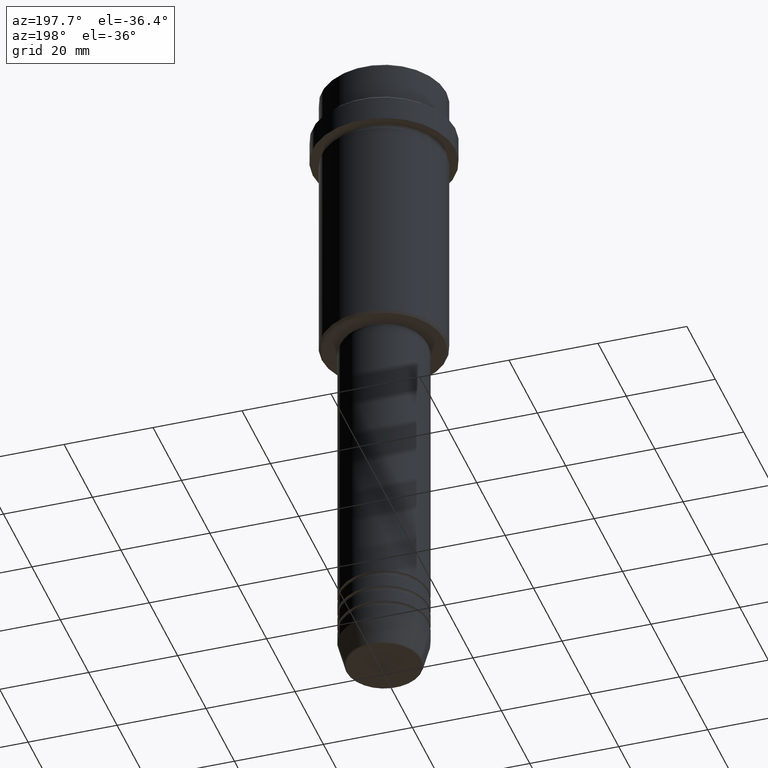
[diagram: clean part render]
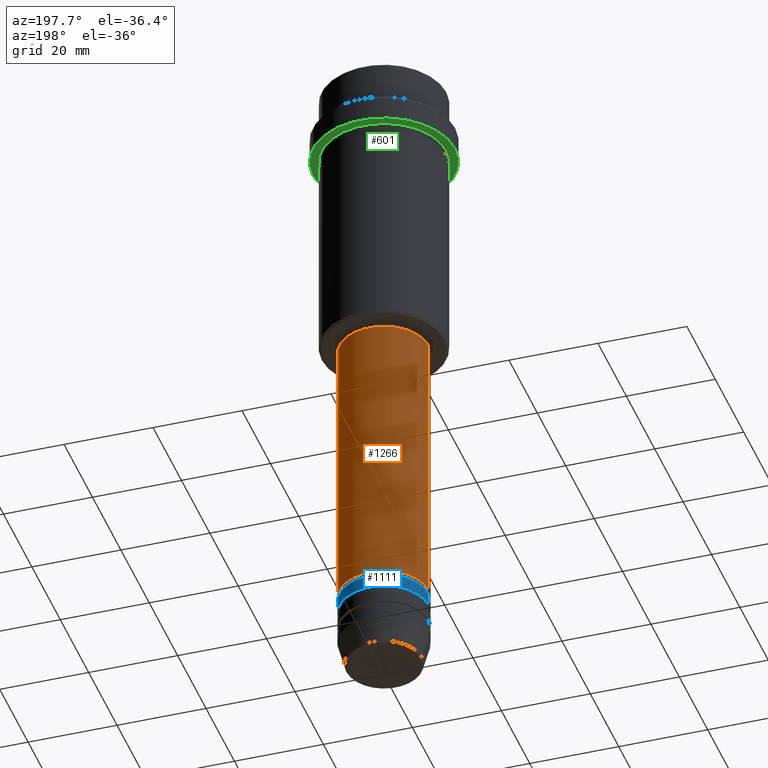
[diagram: same view with three faces highlighted in distinct colors, each labeled with its STEP entity id]
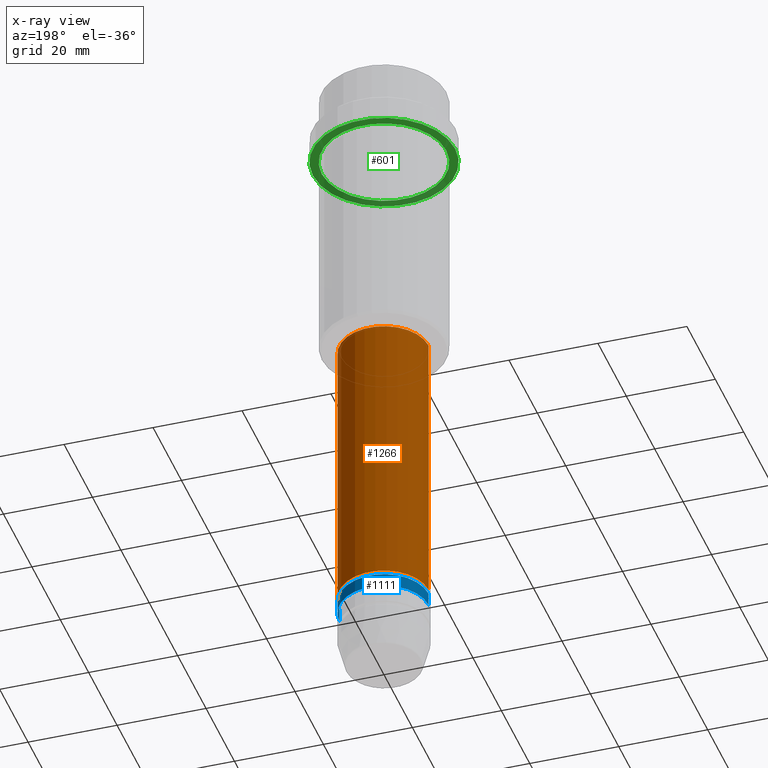
[diagram: x-ray of the same camera — body ghosted, the three highlighted faces saturated]
A machine part, auxiliary view with three faces highlighted in distinct colors.
The next image is the same camera in x-ray (body ghosted, the three faces saturated) — at least one of them is partly hidden behind the body in this view.
Their STEP definitions:

[orange] entity #1266 — the highlighted cylindrical surface (partial cylindrical patch) has radius 10 mm, axis along (-0, -0, 1).
#29 = CARTESIAN_POINT ( 'NONE',  ( 10.00000000000000178, 0.000000000000000000, -67.00000000000000000 ) ) ;
#37 = VECTOR ( 'NONE', #460, 1000.000000000000000 ) ;
#136 = DIRECTION ( 'NONE',  ( 1.000000000000000000, 0.000000000000000000, 0.000000000000000000 ) ) ;
#144 = EDGE_CURVE ( 'NONE', #1363, #1289, #445, .T. ) ;
#206 = FACE_OUTER_BOUND ( 'NONE', #517, .T. ) ;
#242 = LINE ( 'NONE', #774, #37 ) ;
#244 = CARTESIAN_POINT ( 'NONE',  ( 10.00000000000000000, 0.000000000000000000, -131.9999999999998863 ) ) ;
#256 = ORIENTED_EDGE ( 'NONE', *, *, #290, .F. ) ;
#272 = DIRECTION ( 'NONE',  ( -0.000000000000000000, -0.000000000000000000, 1.000000000000000000 ) ) ;
#282 = DIRECTION ( 'NONE',  ( 1.000000000000000000, 0.000000000000000000, 0.000000000000000000 ) ) ;
#290 = EDGE_CURVE ( 'NONE', #1047, #941, #586, .T. ) ;
#416 = ORIENTED_EDGE ( 'NONE', *, *, #144, .T. ) ;
#432 = DIRECTION ( 'NONE',  ( 1.000000000000000000, 0.000000000000000000, 0.000000000000000000 ) ) ;
#445 = CIRCLE ( 'NONE', #893, 10.00000000000000000 ) ;
#460 = DIRECTION ( 'NONE',  ( -0.000000000000000000, -0.000000000000000000, 1.000000000000000000 ) ) ;
#517 = EDGE_LOOP ( 'NONE', ( #416, #1076, #256, #836 ) ) ;
#586 = CIRCLE ( 'NONE', #1162, 10.00000000000000178 ) ;
#652 = EDGE_CURVE ( 'NONE', #1363, #1047, #671, .T. ) ;
#671 = LINE ( 'NONE', #781, #1327 ) ;
#684 = DIRECTION ( 'NONE',  ( -0.000000000000000000, -0.000000000000000000, 1.000000000000000000 ) ) ;
#702 = CARTESIAN_POINT ( 'NONE',  ( 0.000000000000000000, 0.000000000000000000, -131.9999999999998863 ) ) ;
#756 = CARTESIAN_POINT ( 'NONE',  ( -10.00000000000000000, 1.224646799147353256E-15, -131.9999999999998863 ) ) ;
#774 = CARTESIAN_POINT ( 'NONE',  ( -10.00000000000000178, 1.224646799147353454E-15, 0.000000000000000000 ) ) ;
#781 = CARTESIAN_POINT ( 'NONE',  ( 10.00000000000000178, 0.000000000000000000, 0.000000000000000000 ) ) ;
#826 = CARTESIAN_POINT ( 'NONE',  ( 0.000000000000000000, 0.000000000000000000, -67.00000000000000000 ) ) ;
#836 = ORIENTED_EDGE ( 'NONE', *, *, #652, .F. ) ;
#879 = DIRECTION ( 'NONE',  ( -0.000000000000000000, -0.000000000000000000, 1.000000000000000000 ) ) ;
#893 = AXIS2_PLACEMENT_3D ( 'NONE', #702, #684, #136 ) ;
#941 = VERTEX_POINT ( 'NONE', #1123 ) ;
#1011 = EDGE_CURVE ( 'NONE', #1289, #941, #242, .T. ) ;
#1047 = VERTEX_POINT ( 'NONE', #29 ) ;
#1076 = ORIENTED_EDGE ( 'NONE', *, *, #1011, .T. ) ;
#1091 = DIRECTION ( 'NONE',  ( -0.000000000000000000, -0.000000000000000000, 1.000000000000000000 ) ) ;
#1123 = CARTESIAN_POINT ( 'NONE',  ( -10.00000000000000178, 1.224646799147353454E-15, -67.00000000000000000 ) ) ;
#1162 = AXIS2_PLACEMENT_3D ( 'NONE', #826, #272, #282 ) ;
#1266 = ADVANCED_FACE ( 'NONE', ( #206 ), #1269, .T. ) ;
#1269 = CYLINDRICAL_SURFACE ( 'NONE', #1398, 10.00000000000000178 ) ;
#1289 = VERTEX_POINT ( 'NONE', #756 ) ;
#1290 = CARTESIAN_POINT ( 'NONE',  ( 0.000000000000000000, 0.000000000000000000, 0.000000000000000000 ) ) ;
#1327 = VECTOR ( 'NONE', #1091, 1000.000000000000000 ) ;
#1363 = VERTEX_POINT ( 'NONE', #244 ) ;
#1398 = AXIS2_PLACEMENT_3D ( 'NONE', #1290, #879, #432 ) ;

[blue] entity #1111 — the highlighted cylindrical surface (partial cylindrical patch) has radius 10 mm, axis along (-0, -0, 1).
#5 = CIRCLE ( 'NONE', #759, 10.00000000000000000 ) ;
#13 = CIRCLE ( 'NONE', #1165, 10.00000000000000000 ) ;
#82 = LINE ( 'NONE', #729, #164 ) ;
#88 = DIRECTION ( 'NONE',  ( -0.000000000000000000, -0.000000000000000000, 1.000000000000000000 ) ) ;
#133 = EDGE_CURVE ( 'NONE', #750, #1164, #82, .T. ) ;
#149 = EDGE_CURVE ( 'NONE', #750, #822, #5, .T. ) ;
#164 = VECTOR ( 'NONE', #934, 1000.000000000000000 ) ;
#203 = CARTESIAN_POINT ( 'NONE',  ( 0.000000000000000000, 0.000000000000000000, -132.9999999999998863 ) ) ;
#232 = CARTESIAN_POINT ( 'NONE',  ( 10.00000000000000000, 0.000000000000000000, -132.9999999999998863 ) ) ;
#299 = VERTEX_POINT ( 'NONE', #944 ) ;
#307 = CYLINDRICAL_SURFACE ( 'NONE', #721, 10.00000000000000000 ) ;
#358 = DIRECTION ( 'NONE',  ( -0.000000000000000000, -0.000000000000000000, 1.000000000000000000 ) ) ;
#394 = DIRECTION ( 'NONE',  ( -0.000000000000000000, -0.000000000000000000, 1.000000000000000000 ) ) ;
#494 = EDGE_LOOP ( 'NONE', ( #921, #1262, #936, #838 ) ) ;
#528 = DIRECTION ( 'NONE',  ( 1.000000000000000000, 0.000000000000000000, 0.000000000000000000 ) ) ;
#543 = DIRECTION ( 'NONE',  ( -0.000000000000000000, -0.000000000000000000, 1.000000000000000000 ) ) ;
#694 = CARTESIAN_POINT ( 'NONE',  ( -10.00000000000000000, 1.224646799147353256E-15, 0.000000000000000000 ) ) ;
#721 = AXIS2_PLACEMENT_3D ( 'NONE', #1406, #543, #742 ) ;
#729 = CARTESIAN_POINT ( 'NONE',  ( 10.00000000000000000, 0.000000000000000000, 0.000000000000000000 ) ) ;
#742 = DIRECTION ( 'NONE',  ( 1.000000000000000000, 0.000000000000000000, 0.000000000000000000 ) ) ;
#750 = VERTEX_POINT ( 'NONE', #1157 ) ;
#759 = AXIS2_PLACEMENT_3D ( 'NONE', #897, #358, #792 ) ;
#792 = DIRECTION ( 'NONE',  ( 1.000000000000000000, 0.000000000000000000, 0.000000000000000000 ) ) ;
#795 = LINE ( 'NONE', #694, #935 ) ;
#822 = VERTEX_POINT ( 'NONE', #1381 ) ;
#838 = ORIENTED_EDGE ( 'NONE', *, *, #133, .F. ) ;
#897 = CARTESIAN_POINT ( 'NONE',  ( 0.000000000000000000, 0.000000000000000000, -135.9999999999998863 ) ) ;
#921 = ORIENTED_EDGE ( 'NONE', *, *, #149, .T. ) ;
#934 = DIRECTION ( 'NONE',  ( -0.000000000000000000, -0.000000000000000000, 1.000000000000000000 ) ) ;
#935 = VECTOR ( 'NONE', #394, 1000.000000000000000 ) ;
#936 = ORIENTED_EDGE ( 'NONE', *, *, #1093, .F. ) ;
#944 = CARTESIAN_POINT ( 'NONE',  ( -10.00000000000000000, 1.224646799147353256E-15, -132.9999999999998863 ) ) ;
#975 = EDGE_CURVE ( 'NONE', #822, #299, #795, .T. ) ;
#1093 = EDGE_CURVE ( 'NONE', #1164, #299, #13, .T. ) ;
#1111 = ADVANCED_FACE ( 'NONE', ( #1282 ), #307, .T. ) ;
#1157 = CARTESIAN_POINT ( 'NONE',  ( 10.00000000000000000, 0.000000000000000000, -135.9999999999998863 ) ) ;
#1164 = VERTEX_POINT ( 'NONE', #232 ) ;
#1165 = AXIS2_PLACEMENT_3D ( 'NONE', #203, #88, #528 ) ;
#1262 = ORIENTED_EDGE ( 'NONE', *, *, #975, .T. ) ;
#1282 = FACE_OUTER_BOUND ( 'NONE', #494, .T. ) ;
#1381 = CARTESIAN_POINT ( 'NONE',  ( -10.00000000000000000, 1.224646799147353256E-15, -135.9999999999998863 ) ) ;
#1406 = CARTESIAN_POINT ( 'NONE',  ( 0.000000000000000000, 0.000000000000000000, 0.000000000000000000 ) ) ;

[green] entity #601 — the highlighted planar face has unit normal (0, 0, -1).
#9 = DIRECTION ( 'NONE',  ( -1.000000000000000000, 0.000000000000000000, -0.000000000000000000 ) ) ;
#19 = DIRECTION ( 'NONE',  ( -0.000000000000000000, -0.000000000000000000, 1.000000000000000000 ) ) ;
#35 = EDGE_CURVE ( 'NONE', #1145, #53, #624, .T. ) ;
#53 = VERTEX_POINT ( 'NONE', #1127 ) ;
#68 = CARTESIAN_POINT ( 'NONE',  ( 0.000000000000000000, 0.000000000000000000, -16.00000000000000000 ) ) ;
#125 = DIRECTION ( 'NONE',  ( 1.000000000000000000, 0.000000000000000000, 0.000000000000000000 ) ) ;
#265 = DIRECTION ( 'NONE',  ( -1.000000000000000000, 0.000000000000000000, 0.000000000000000000 ) ) ;
#285 = EDGE_CURVE ( 'NONE', #53, #1145, #1022, .T. ) ;
#318 = FACE_BOUND ( 'NONE', #867, .T. ) ;
#333 = CARTESIAN_POINT ( 'NONE',  ( 15.99999999999998579, 0.000000000000000000, -16.00000000000000000 ) ) ;
#353 = CARTESIAN_POINT ( 'NONE',  ( 0.000000000000000000, 0.000000000000000000, -16.00000000000000000 ) ) ;
#388 = CARTESIAN_POINT ( 'NONE',  ( 0.000000000000000000, 0.000000000000000000, -16.00000000000000000 ) ) ;
#414 = CARTESIAN_POINT ( 'NONE',  ( 0.000000000000000000, 0.000000000000000000, -16.00000000000000000 ) ) ;
#440 = ORIENTED_EDGE ( 'NONE', *, *, #35, .T. ) ;
#463 = EDGE_LOOP ( 'NONE', ( #1051, #862 ) ) ;
#541 = CIRCLE ( 'NONE', #813, 15.99999999999998579 ) ;
#552 = PLANE ( 'NONE',  #1302 ) ;
#558 = VERTEX_POINT ( 'NONE', #1358 ) ;
#561 = DIRECTION ( 'NONE',  ( 0.000000000000000000, 0.000000000000000000, -1.000000000000000000 ) ) ;
#601 = ADVANCED_FACE ( 'NONE', ( #318, #772 ), #552, .T. ) ;
#605 = AXIS2_PLACEMENT_3D ( 'NONE', #68, #930, #265 ) ;
#624 = CIRCLE ( 'NONE', #1117, 13.99999999999997868 ) ;
#632 = EDGE_CURVE ( 'NONE', #1394, #558, #541, .T. ) ;
#665 = EDGE_CURVE ( 'NONE', #558, #1394, #1218, .T. ) ;
#669 = DIRECTION ( 'NONE',  ( -0.000000000000000000, -0.000000000000000000, 1.000000000000000000 ) ) ;
#672 = CARTESIAN_POINT ( 'NONE',  ( 0.000000000000000000, 15.99999999999998579, -16.00000000000000000 ) ) ;
#772 = FACE_OUTER_BOUND ( 'NONE', #463, .T. ) ;
#784 = DIRECTION ( 'NONE',  ( -0.000000000000000000, -0.000000000000000000, 1.000000000000000000 ) ) ;
#813 = AXIS2_PLACEMENT_3D ( 'NONE', #388, #19, #125 ) ;
#862 = ORIENTED_EDGE ( 'NONE', *, *, #665, .F. ) ;
#867 = EDGE_LOOP ( 'NONE', ( #1389, #440 ) ) ;
#930 = DIRECTION ( 'NONE',  ( -0.000000000000000000, -0.000000000000000000, 1.000000000000000000 ) ) ;
#984 = DIRECTION ( 'NONE',  ( 1.000000000000000000, 0.000000000000000000, 0.000000000000000000 ) ) ;
#1022 = CIRCLE ( 'NONE', #605, 13.99999999999997868 ) ;
#1051 = ORIENTED_EDGE ( 'NONE', *, *, #632, .F. ) ;
#1117 = AXIS2_PLACEMENT_3D ( 'NONE', #353, #784, #1216 ) ;
#1127 = CARTESIAN_POINT ( 'NONE',  ( -13.99999999999997868, 0.000000000000000000, -16.00000000000000000 ) ) ;
#1145 = VERTEX_POINT ( 'NONE', #1287 ) ;
#1163 = AXIS2_PLACEMENT_3D ( 'NONE', #414, #669, #984 ) ;
#1216 = DIRECTION ( 'NONE',  ( -1.000000000000000000, 0.000000000000000000, 0.000000000000000000 ) ) ;
#1218 = CIRCLE ( 'NONE', #1163, 15.99999999999998579 ) ;
#1287 = CARTESIAN_POINT ( 'NONE',  ( 13.99999999999997868, 1.714505518806292074E-15, -16.00000000000000000 ) ) ;
#1302 = AXIS2_PLACEMENT_3D ( 'NONE', #672, #561, #9 ) ;
#1358 = CARTESIAN_POINT ( 'NONE',  ( -15.99999999999998579, 1.959434878635763554E-15, -16.00000000000000000 ) ) ;
#1389 = ORIENTED_EDGE ( 'NONE', *, *, #285, .T. ) ;
#1394 = VERTEX_POINT ( 'NONE', #333 ) ;